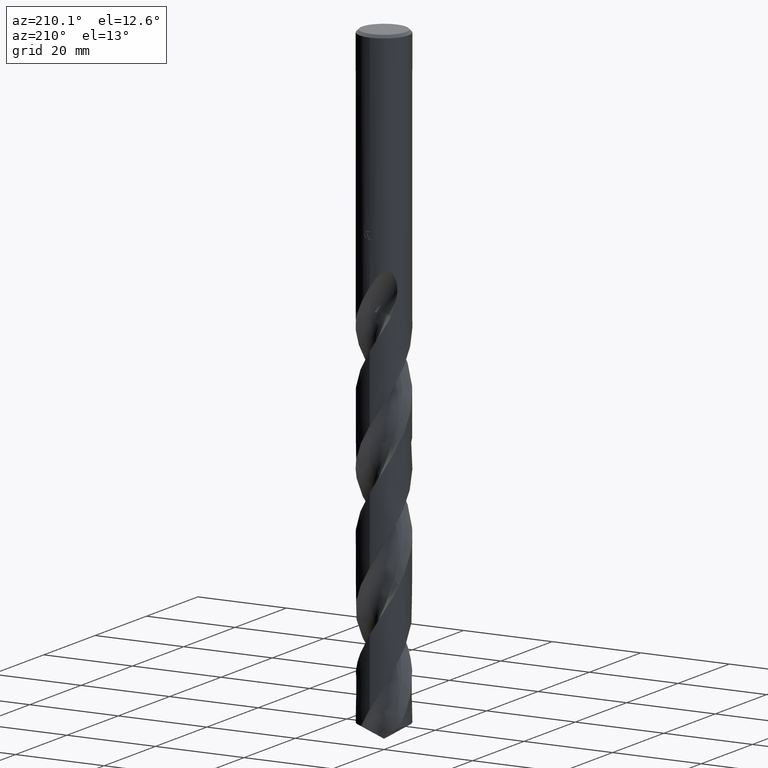
[diagram: clean part render]
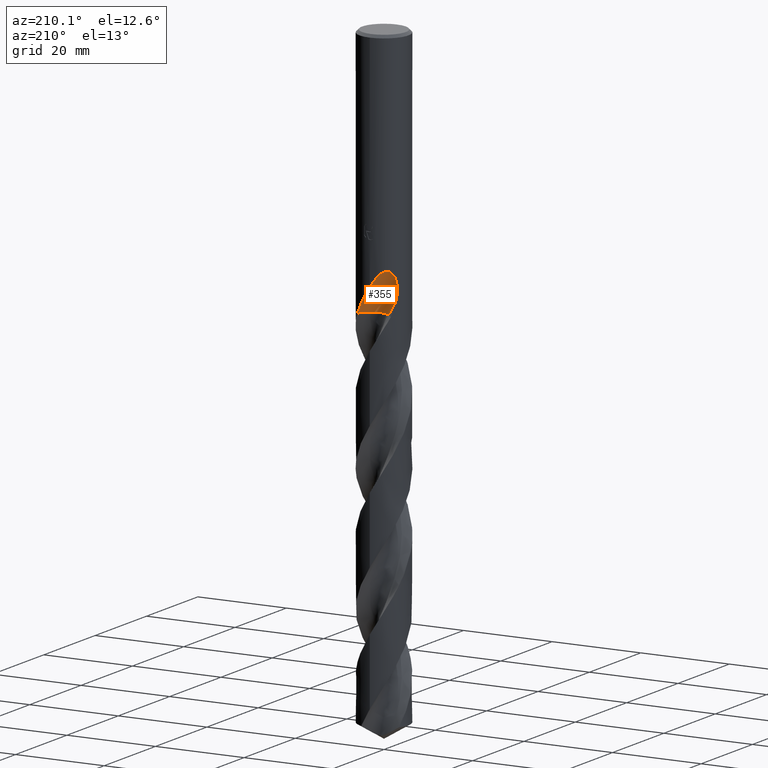
[diagram: same view with one face highlighted and labeled with its STEP entity id]
A machine part, auxiliary view. The second image highlights one B-rep face of the part: STEP entity #355.
In plain terms, the highlighted face is a SurfaceOfRevolution surface.
Its self-contained STEP definition (entity closure, byte-faithful):
#355=ADVANCED_FACE('',(#848),#849,.F.);
#413=EDGE_CURVE('',#723,#431,#911,.T.);
#431=VERTEX_POINT('',#931);
#455=VERTEX_POINT('',#960);
#493=VERTEX_POINT('',#1000);
#541=EDGE_CURVE('',#455,#493,#1052,.T.);
#609=EDGE_CURVE('',#431,#455,#1124,.T.);
#669=EDGE_CURVE('',#723,#493,#1188,.T.);
#723=VERTEX_POINT('',#1248);
#848=FACE_OUTER_BOUND('',#2781,.T.);
#849=SURFACE_OF_REVOLUTION('',#2782,#2783);
#911=B_SPLINE_CURVE_WITH_KNOTS('',3,(#3276,#3277,#3278,#3279,#3280,#3281,#3282,#3283,#3284,#3285,#3286,#3287,#3288,#3289,#3290,#3291),.UNSPECIFIED.,.F.,.F.,(4,2,2,2,2,2,2,4),(0.0,1.44563693905529,2.89116292444897,4.33652362146167,5.78173054680679,7.22685806277214,8.10254183443495,8.97824738075687),.UNSPECIFIED.);
#931=CARTESIAN_POINT('',(3.53416691770805,4.27927145642549,-56.3916));
#960=CARTESIAN_POINT('',(-1.71141555381548E-012,5.55,-50.497078777137));
#1000=CARTESIAN_POINT('',(-4.51571400634924,3.22658131973475,-53.3575297343524));
#1052=B_SPLINE_CURVE_WITH_KNOTS('',3,(#4620,#4621,#4622,#4623,#4624,#4625,#4626,#4627,#4628,#4629,#4630,#4631,#4632,#4633,#4634,#4635,#4636,#4637,#4638,#4639,#4640,#4641,#4642,#4643,#4644,#4645,#4646,#4647,#4648,#4649),.UNSPECIFIED.,.F.,.F.,(4,2,2,2,2,2,2,2,2,2,2,2,2,2,4),(0.0,2.71554571980446,4.19995213490147,5.54499475809851,7.10792988907432,8.98510180946202,10.6098295872118,11.3469431440182,11.885728142585,12.3956058036005,13.042460287542,13.9888722639679,15.334281634665,16.2143961172333,17.1393257383569),.UNSPECIFIED.);
#1124=B_SPLINE_CURVE_WITH_KNOTS('',3,(#6185,#6186,#6187,#6188,#6189,#6190,#6191,#6192,#6193,#6194,#6195,#6196,#6197,#6198,#6199,#6200,#6201,#6202,#6203,#6204,#6205,#6206,#6207,#6208,#6209,#6210,#6211,#6212,#6213,#6214),.UNSPECIFIED.,.F.,.F.,(4,2,2,2,2,2,2,2,2,2,2,2,2,2,4),(0.0,2.71554571980446,4.19995213490147,5.54499475809851,7.10792988907432,8.98510180946202,10.6098295872118,11.3469431440182,11.885728142585,12.3956058036005,13.042460287542,13.9888722639679,15.334281634665,16.2143961172333,17.1393257383569),.UNSPECIFIED.);
#1188=CIRCLE('',#7814,24.1161924458449);
#1248=CARTESIAN_POINT('',(-2.61942009031952,2.74904521797309,-56.3916));
#2781=EDGE_LOOP('',(#8345,#8346,#8347,#8348));
#2782=(B_SPLINE_CURVE(3,(#8350,#8351,#8352,#8353,#8354,#8355,#8356,#8357,#8358),.UNSPECIFIED.,.F.,.F.)B_SPLINE_CURVE_WITH_KNOTS((4,1,3,1,4),(-2.85637049075696,-2.55358295308691,-2.25079541541685,-1.9480078777468,-1.64522034007675),.UNSPECIFIED.)RATIONAL_B_SPLINE_CURVE((1.09168029296829,1.0305600976561,0.969439902343902,1.0305600976561,1.09168029296829,1.0305600976561,0.969439902343902,1.0305600976561,1.09168029296829))BOUNDED_CURVE()REPRESENTATION_ITEM('')GEOMETRIC_REPRESENTATION_ITEM()CURVE());
#2783=AXIS1_PLACEMENT('',#8365,#8366);
#3276=CARTESIAN_POINT('',(-2.61942009031952,2.7490452179731,-56.3916));
#3277=CARTESIAN_POINT('',(-2.27870722196205,2.4082782999808,-56.3916));
#3278=CARTESIAN_POINT('',(-1.87469173171219,2.13731589913227,-56.3916));
#3279=CARTESIAN_POINT('',(-0.985572164250158,1.76553277288945,-56.3916));
#3280=CARTESIAN_POINT('',(-0.50897240995612,1.66825257743764,-56.3916));
#3281=CARTESIAN_POINT('',(0.454632588024321,1.66187281709096,-56.3916));
#3282=CARTESIAN_POINT('',(0.932423617595707,1.75281296371806,-56.3916));
#3283=CARTESIAN_POINT('',(1.82620012783366,2.1127161788417,-56.3916));
#3284=CARTESIAN_POINT('',(2.23364419603175,2.37821848168855,-56.3916));
#3285=CARTESIAN_POINT('',(2.92380330750003,3.05045021429906,-56.3916));
#3286=CARTESIAN_POINT('',(3.19992299750728,3.45074126106354,-56.3916));
#3287=CARTESIAN_POINT('',(3.50767499189066,4.16049131360668,-56.3916));
#3288=CARTESIAN_POINT('',(3.59169234368052,4.44109687331895,-56.3916));
#3289=CARTESIAN_POINT('',(3.69201776122613,5.01620534094717,-56.3916));
#3290=CARTESIAN_POINT('',(3.70797231557001,5.30869162203115,-56.3916));
#3291=CARTESIAN_POINT('',(3.68938804124974,5.6,-56.3916));
#4620=CARTESIAN_POINT('',(3.53416691770805,4.27927145642549,-56.3916));
#4621=CARTESIAN_POINT('',(3.16825299423757,4.58147263628202,-55.620797994591));
#4622=CARTESIAN_POINT('',(2.74773233112286,4.85000705771806,-54.9019787866435));
#4623=CARTESIAN_POINT('',(2.01447189540071,5.17929640951057,-53.700924585549));
#4624=CARTESIAN_POINT('',(1.75042969909802,5.27408337292277,-53.2780387698275));
#4625=CARTESIAN_POINT('',(1.23919719962164,5.41576292009447,-52.459306827744));
#4626=CARTESIAN_POINT('',(0.994278278619489,5.46581809216823,-52.0672591118119));
#4627=CARTESIAN_POINT('',(0.464077820893535,5.53803600734072,-51.2222212346555));
#4628=CARTESIAN_POINT('',(0.174354453735316,5.55495965576598,-50.7625985820317));
#4629=CARTESIAN_POINT('',(-0.469007913307961,5.54128450955062,-49.7794475626532));
#4630=CARTESIAN_POINT('',(-0.850484224670217,5.49933684497017,-49.220025199228));
#4631=CARTESIAN_POINT('',(-1.58566385422093,5.33016637491701,-48.2983730039671));
#4632=CARTESIAN_POINT('',(-1.99201894394977,5.20147414289074,-47.8491133217153));
#4633=CARTESIAN_POINT('',(-2.6072632943519,4.90409633036194,-47.4281198041953));
#4634=CARTESIAN_POINT('',(-2.81106902607706,4.79174491453877,-47.3240031425544));
#4635=CARTESIAN_POINT('',(-3.16819211441747,4.56041049789696,-47.2440413785207));
#4636=CARTESIAN_POINT('',(-3.31467231429698,4.45505643237463,-47.2425661065378));
#4637=CARTESIAN_POINT('',(-3.58750283605625,4.23804833747488,-47.3126223027479));
#4638=CARTESIAN_POINT('',(-3.70682659823599,4.13323651246762,-47.3782928132781));
#4639=CARTESIAN_POINT('',(-3.94965430540244,3.9035456061515,-47.5837561995636));
#4640=CARTESIAN_POINT('',(-4.06199790161699,3.78451274910554,-47.7354524243094));
#4641=CARTESIAN_POINT('',(-4.29211418350843,3.52459603700091,-48.1508404124883));
#4642=CARTESIAN_POINT('',(-4.40210269005151,3.38305463627348,-48.4589368298414));
#4643=CARTESIAN_POINT('',(-4.6089178539165,3.09886275872721,-49.3209345397371));
#4644=CARTESIAN_POINT('',(-4.68367663937856,2.97782629983709,-49.9348312303497));
#4645=CARTESIAN_POINT('',(-4.7206341711601,2.91871087349003,-51.0708415278319));
#4646=CARTESIAN_POINT('',(-4.71191942299903,2.9331605816343,-51.5231543606201));
#4647=CARTESIAN_POINT('',(-4.65044671987064,3.02973370545345,-52.4411187631876));
#4648=CARTESIAN_POINT('',(-4.59557213353759,3.11481706285408,-52.9033155071982));
#4649=CARTESIAN_POINT('',(-4.51571400634924,3.22658131973476,-53.3575297343524));
#6185=CARTESIAN_POINT('',(3.53416691770805,4.27927145642549,-56.3916));
#6186=CARTESIAN_POINT('',(3.16825299423757,4.58147263628202,-55.620797994591));
#6187=CARTESIAN_POINT('',(2.74773233112286,4.85000705771806,-54.9019787866435));
#6188=CARTESIAN_POINT('',(2.01447189540071,5.17929640951057,-53.700924585549));
#6189=CARTESIAN_POINT('',(1.75042969909802,5.27408337292277,-53.2780387698275));
#6190=CARTESIAN_POINT('',(1.23919719962164,5.41576292009447,-52.459306827744));
#6191=CARTESIAN_POINT('',(0.994278278619489,5.46581809216823,-52.0672591118119));
#6192=CARTESIAN_POINT('',(0.464077820893535,5.53803600734072,-51.2222212346555));
#6193=CARTESIAN_POINT('',(0.174354453735316,5.55495965576598,-50.7625985820317));
#6194=CARTESIAN_POINT('',(-0.469007913307961,5.54128450955062,-49.7794475626532));
#6195=CARTESIAN_POINT('',(-0.850484224670217,5.49933684497017,-49.220025199228));
#6196=CARTESIAN_POINT('',(-1.58566385422093,5.33016637491701,-48.2983730039671));
#6197=CARTESIAN_POINT('',(-1.99201894394977,5.20147414289074,-47.8491133217153));
#6198=CARTESIAN_POINT('',(-2.6072632943519,4.90409633036194,-47.4281198041953));
#6199=CARTESIAN_POINT('',(-2.81106902607706,4.79174491453877,-47.3240031425544));
#6200=CARTESIAN_POINT('',(-3.16819211441747,4.56041049789696,-47.2440413785207));
#6201=CARTESIAN_POINT('',(-3.31467231429698,4.45505643237463,-47.2425661065378));
#6202=CARTESIAN_POINT('',(-3.58750283605625,4.23804833747488,-47.3126223027479));
#6203=CARTESIAN_POINT('',(-3.70682659823599,4.13323651246762,-47.3782928132781));
#6204=CARTESIAN_POINT('',(-3.94965430540244,3.9035456061515,-47.5837561995636));
#6205=CARTESIAN_POINT('',(-4.06199790161699,3.78451274910554,-47.7354524243094));
#6206=CARTESIAN_POINT('',(-4.29211418350843,3.52459603700091,-48.1508404124883));
#6207=CARTESIAN_POINT('',(-4.40210269005151,3.38305463627348,-48.4589368298414));
#6208=CARTESIAN_POINT('',(-4.6089178539165,3.09886275872721,-49.3209345397371));
#6209=CARTESIAN_POINT('',(-4.68367663937856,2.97782629983709,-49.9348312303497));
#6210=CARTESIAN_POINT('',(-4.7206341711601,2.91871087349003,-51.0708415278319));
#6211=CARTESIAN_POINT('',(-4.71191942299903,2.9331605816343,-51.5231543606201));
#6212=CARTESIAN_POINT('',(-4.65044671987064,3.02973370545345,-52.4411187631876));
#6213=CARTESIAN_POINT('',(-4.59557213353759,3.11481706285408,-52.9033155071982));
#6214=CARTESIAN_POINT('',(-4.51571400634924,3.22658131973476,-53.3575297343524));
#7814=AXIS2_PLACEMENT_3D('',#8699,#8700,#8701);
#8345=ORIENTED_EDGE('',*,*,#413,.F.);
#8346=ORIENTED_EDGE('',*,*,#669,.T.);
#8347=ORIENTED_EDGE('',*,*,#541,.F.);
#8348=ORIENTED_EDGE('',*,*,#609,.F.);
#8350=CARTESIAN_POINT('',(-2.61629509031952,2.74870490968049,-56.3966));
#8351=CARTESIAN_POINT('',(-2.10383865955792,2.23624094357204,-56.3966));
#8352=CARTESIAN_POINT('',(-0.771303450195264,1.5080775484887,-56.3966));
#8353=CARTESIAN_POINT('',(0.738787281162038,1.66775847157981,-56.3966));
#8354=CARTESIAN_POINT('',(1.4089175373209,1.9437228710392,-56.3966));
#8355=CARTESIAN_POINT('',(2.07904779347976,2.21968727049859,-56.3966));
#8356=CARTESIAN_POINT('',(3.26367073966519,3.16970858052349,-56.3966));
#8357=CARTESIAN_POINT('',(3.6970136349363,4.62507312222722,-56.3966));
#8358=CARTESIAN_POINT('',(3.69998807278229,5.34979518116294,-56.3966));
#8365=CARTESIAN_POINT('',(-1.88138073910617,26.825,-57.5724629619413));
#8366=DIRECTION('',(0.847998304005088,-0.0,0.52999894000318));
#8699=CARTESIAN_POINT('',(-1.88138073910617,26.825,-57.5724629619413));
#8700=DIRECTION('',(-0.847998304005088,0.0,-0.52999894000318));
#8701=DIRECTION('',(-0.0535598122533606,-0.994880693138896,0.085695699605377));